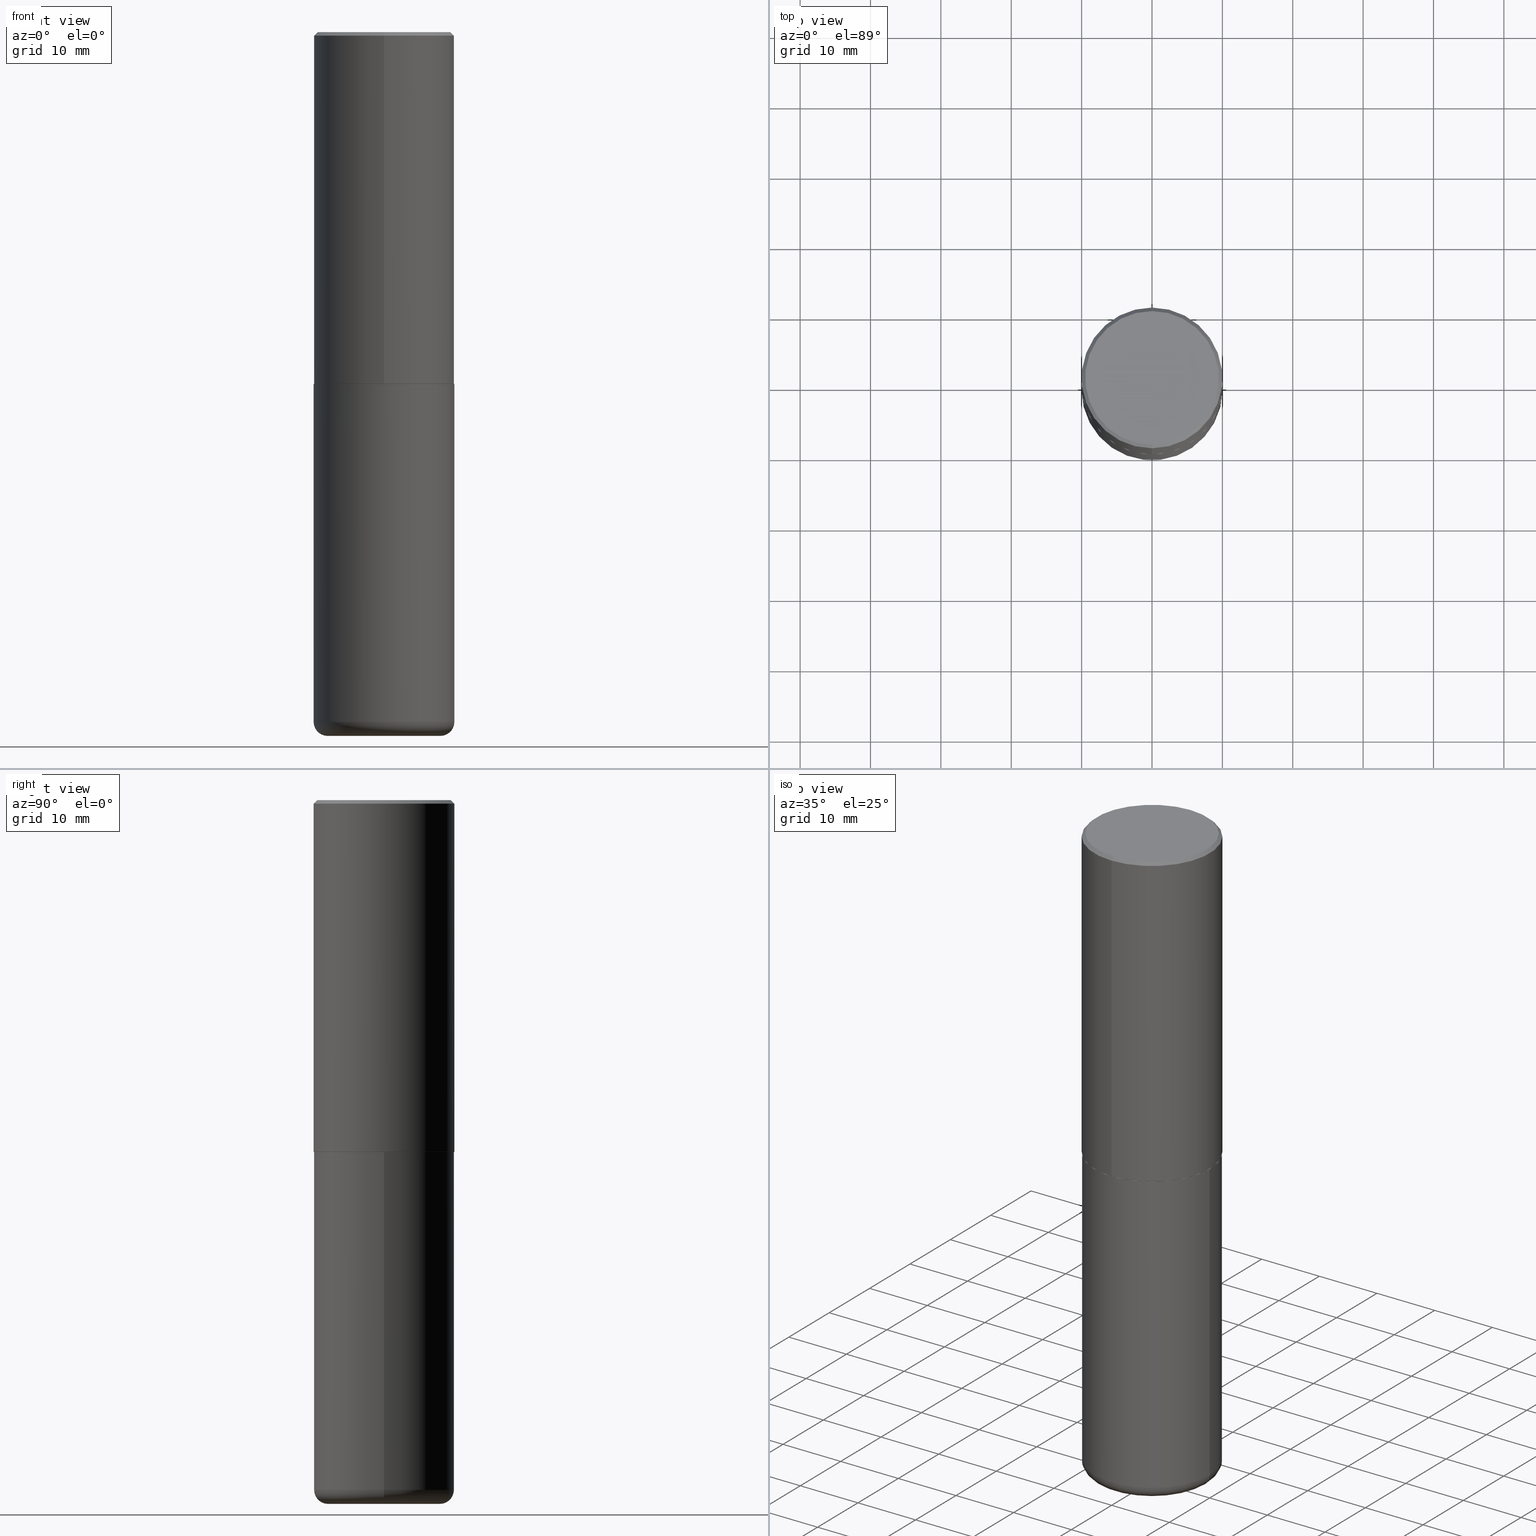
[diagram: canonical four-view strip — front | top / right | iso, engineering-drawing reading convention]
A machine part, canonical four-view strip (front | top / right | iso — engineering-drawing reading convention). The complete STEP part file that produces these views, byte-faithful:
ISO-10303-21;
HEADER;
FILE_DESCRIPTION (( 'STEP AP203' ),
    '1' );
FILE_NAME ('74516.STEP',
    '2024-03-06T15:22:37',
    ( '' ),
    ( '' ),
    'SwSTEP 2.0',
    'SolidWorks 2023',
    '' );
FILE_SCHEMA (( 'CONFIG_CONTROL_DESIGN' ));
ENDSEC;

DATA;
#1 = AXIS2_PLACEMENT_3D ( 'NONE', #408, #345, #49 ) ;
#2 = CARTESIAN_POINT ( 'NONE',  ( 2.749192406205083217E-15, 0.3936999999999999389, -0.02000000000000146105 ) ) ;
#3 = ORIENTED_EDGE ( 'NONE', *, *, #142, .F. ) ;
#4 = EDGE_LOOP ( 'NONE', ( #48, #158, #391, #302 ) ) ;
#5 = PERSON_AND_ORGANIZATION ( #255, #61 ) ;
#6 = VERTEX_POINT ( 'NONE', #68 ) ;
#7 = ADVANCED_BREP_SHAPE_REPRESENTATION ( '74516', ( #343, #53, #19 ), #394 ) ;
#8 = ORIENTED_EDGE ( 'NONE', *, *, #86, .F. ) ;
#9 = DIRECTION ( 'NONE',  ( -2.445468806185136597E-29, 3.491481338843145583E-15, 1.000000000000000000 ) ) ;
#10 = AXIS2_PLACEMENT_3D ( 'NONE', #106, #201, #334 ) ;
#11 = CIRCLE ( 'NONE', #88, 0.3926999999999999935 ) ;
#12 = PERSON_AND_ORGANIZATION ( #255, #61 ) ;
#13 = CARTESIAN_POINT ( 'NONE',  ( 4.818695749097161561E-29, -6.866120884157558352E-15, -1.968500000000000139 ) ) ;
#14 = AXIS2_PLACEMENT_3D ( 'NONE', #389, #25, #62 ) ;
#15 = DIRECTION ( 'NONE',  ( -4.851104656540946920E-15, -0.7071067811865474617, -0.7071067811865475727 ) ) ;
#16 = ADVANCED_FACE ( 'NONE', ( #136 ), #270, .F. ) ;
#17 = FACE_OUTER_BOUND ( 'NONE', #153, .T. ) ;
#18 = CARTESIAN_POINT ( 'NONE',  ( 0.3937000000000002164, -1.622037485586359329E-14, -3.858300000000000285 ) ) ;
#19 = AXIS2_PLACEMENT_3D ( 'NONE', #173, #115, #243 ) ;
#20 = DIRECTION ( 'NONE',  ( -2.445468806185136597E-29, 3.491481338843145583E-15, 1.000000000000000000 ) ) ;
#21 = ORIENTED_EDGE ( 'NONE', *, *, #205, .F. ) ;
#22 = SECURITY_CLASSIFICATION_LEVEL ( 'unclassified' ) ;
#23 = ORIENTED_EDGE ( 'NONE', *, *, #114, .T. ) ;
#24 = PERSON_AND_ORGANIZATION_ROLE ( 'classification_officer' ) ;
#25 = DIRECTION ( 'NONE',  ( -2.445468806185136597E-29, 3.491481338843145583E-15, 1.000000000000000000 ) ) ;
#26 = VECTOR ( 'NONE', #353, 39.37007874015748143 ) ;
#27 = EDGE_CURVE ( 'NONE', #220, #251, #39, .T. ) ;
#28 = DIRECTION ( 'NONE',  ( -2.445468806185136597E-29, 3.491481338843145583E-15, 1.000000000000000000 ) ) ;
#29 = CYLINDRICAL_SURFACE ( 'NONE', #342, 0.3937000000000001609 ) ;
#30 = ORIENTED_EDGE ( 'NONE', *, *, #339, .T. ) ;
#31 = LINE ( 'NONE', #228, #26 ) ;
#32 = ORIENTED_EDGE ( 'NONE', *, *, #245, .F. ) ;
#33 = AXIS2_PLACEMENT_3D ( 'NONE', #204, #400, #42 ) ;
#34 = LOCAL_TIME ( 10, 22, 37.00000000000000000, #360 ) ;
#35 = PERSON_AND_ORGANIZATION_ROLE ( 'creator' ) ;
#36 = ORIENTED_EDGE ( 'NONE', *, *, #86, .T. ) ;
#37 = ORIENTED_EDGE ( 'NONE', *, *, #134, .T. ) ;
#38 = ORIENTED_EDGE ( 'NONE', *, *, #142, .T. ) ;
#39 = LINE ( 'NONE', #130, #247 ) ;
#40 = CARTESIAN_POINT ( 'NONE',  ( 4.816247846760815671E-29, -6.862632887772413316E-15, -1.967500000000000027 ) ) ;
#41 = TOROIDAL_SURFACE ( 'NONE', #211, 0.3150000000000000577, 0.07870000000000024198 ) ;
#42 = DIRECTION ( 'NONE',  ( -1.000000000000000000, 6.982962677686265922E-15, -4.876176775795935793E-29 ) ) ;
#43 = PLANE ( 'NONE',  #381 ) ;
#44 = VECTOR ( 'NONE', #139, 39.37007874015748143 ) ;
#45 = CARTESIAN_POINT ( 'NONE',  ( -2.700978061722651252E-15, -0.3937000000000001054, -0.01999999999999870978 ) ) ;
#46 = CARTESIAN_POINT ( 'NONE',  ( 4.813905344975441835E-29, -6.872981015512731707E-15, -1.968500000000000139 ) ) ;
#47 = DIRECTION ( 'NONE',  ( -6.982962677686265922E-15, -1.000000000000000000, 3.487996385144809360E-15 ) ) ;
#48 = ORIENTED_EDGE ( 'NONE', *, *, #221, .F. ) ;
#49 = DIRECTION ( 'NONE',  ( 1.000000000000000000, -6.982962677686273810E-15, 0.000000000000000000 ) ) ;
#50 = CC_DESIGN_PERSON_AND_ORGANIZATION_ASSIGNMENT ( #54, #317, ( #190 ) ) ;
#51 = ORIENTED_EDGE ( 'NONE', *, *, #210, .T. ) ;
#52 = CIRCLE ( 'NONE', #172, 0.3937000000000002720 ) ;
#53 = MANIFOLD_SOLID_BREP ( 'Body-Move/Copy2[2]', #137 ) ;
#54 = PERSON_AND_ORGANIZATION ( #255, #61 ) ;
#55 = DIRECTION ( 'NONE',  ( -6.982962677686265922E-15, -1.000000000000000000, 3.469453890861393601E-15 ) ) ;
#56 = VERTEX_POINT ( 'NONE', #418 ) ;
#57 = CARTESIAN_POINT ( 'NONE',  ( 4.895804672692082949E-31, -6.975992770289649092E-17, -0.02000000000000008715 ) ) ;
#58 = EDGE_CURVE ( 'NONE', #71, #194, #117, .T. ) ;
#59 = CARTESIAN_POINT ( 'NONE',  ( -0.3150000000000000577, -1.123297283201419171E-14, -3.858300000000000285 ) ) ;
#60 = AXIS2_PLACEMENT_3D ( 'NONE', #310, #377, #213 ) ;
#61 = ORGANIZATION ( 'UNSPECIFIED', 'UNSPECIFIED', '' ) ;
#62 = DIRECTION ( 'NONE',  ( 1.000000000000000000, -6.982962677686265133E-15, 0.000000000000000000 ) ) ;
#63 = ORIENTED_EDGE ( 'NONE', *, *, #339, .F. ) ;
#64 = PERSON_AND_ORGANIZATION ( #255, #61 ) ;
#65 = LENGTH_MEASURE_WITH_UNIT ( LENGTH_MEASURE( 0.02539999999999999897 ), #393 );
#66 = VERTEX_POINT ( 'NONE', #387 ) ;
#67 = AXIS2_PLACEMENT_3D ( 'NONE', #275, #170, #207 ) ;
#68 = CARTESIAN_POINT ( 'NONE',  ( -0.3150000000000000577, -1.109076405617607056E-14, -3.937000000000000721 ) ) ;
#69 = DATE_TIME_ROLE ( 'creation_date' ) ;
#70 = APPLICATION_CONTEXT ( 'configuration controlled 3d designs of mechanical parts and assemblies' ) ;
#71 = VERTEX_POINT ( 'NONE', #229 ) ;
#72 = EDGE_CURVE ( 'NONE', #66, #220, #77, .T. ) ;
#73 = DIRECTION ( 'NONE',  ( -2.447902336346030930E-29, 3.487996385144809755E-15, 1.000000000000000000 ) ) ;
#74 = ORIENTED_EDGE ( 'NONE', *, *, #135, .T. ) ;
#75 = DIRECTION ( 'NONE',  ( 1.000000000000000000, -6.982962677686266711E-15, 4.876176775795935793E-29 ) ) ;
#76 = EDGE_CURVE ( 'NONE', #6, #324, #392, .T. ) ;
#77 = CIRCLE ( 'NONE', #347, 0.3737000000000003097 ) ;
#78 = CARTESIAN_POINT ( 'NONE',  ( 0.000000000000000000, 0.000000000000000000, 0.000000000000000000 ) ) ;
#79 = FACE_OUTER_BOUND ( 'NONE', #233, .T. ) ;
#80 = DIRECTION ( 'NONE',  ( -2.445468806185136597E-29, 3.491481338843145583E-15, 1.000000000000000000 ) ) ;
#81 = TOROIDAL_SURFACE ( 'NONE', #330, 0.3150000000000000577, 0.07870000000000024198 ) ;
#82 = ORIENTED_EDGE ( 'NONE', *, *, #210, .F. ) ;
#83 = DATE_AND_TIME ( #154, #119 ) ;
#84 = DIRECTION ( 'NONE',  ( -6.982962677686265922E-15, -1.000000000000000000, 3.487996385144809360E-15 ) ) ;
#85 = DIRECTION ( 'NONE',  ( -2.447902336346030930E-29, 3.487996385144809755E-15, 1.000000000000000000 ) ) ;
#86 = EDGE_CURVE ( 'NONE', #324, #238, #405, .T. ) ;
#87 = CIRCLE ( 'NONE', #60, 0.3150000000000000577 ) ;
#88 = AXIS2_PLACEMENT_3D ( 'NONE', #13, #278, #344 ) ;
#89 = CARTESIAN_POINT ( 'NONE',  ( 2.790301323329961110E-15, 0.3926999999999931101, -1.968500000000001471 ) ) ;
#90 = EDGE_LOOP ( 'NONE', ( #358, #296 ) ) ;
#91 = DIRECTION ( 'NONE',  ( -1.000000000000000000, 7.105427357600995548E-15, 0.000000000000000000 ) ) ;
#92 = ORIENTED_EDGE ( 'NONE', *, *, #98, .T. ) ;
#93 = PRODUCT ( '74516', '74516', '', ( #246 ) ) ;
#94 = CIRCLE ( 'NONE', #376, 0.3937000000000000499 ) ;
#95 = VECTOR ( 'NONE', #249, 39.37007874015748143 ) ;
#96 = APPROVAL_PERSON_ORGANIZATION ( #287, #239, #185 ) ;
#97 = ORIENTED_EDGE ( 'NONE', *, *, #227, .T. ) ;
#98 = EDGE_CURVE ( 'NONE', #157, #251, #94, .T. ) ;
#99 = APPROVAL_STATUS ( 'not_yet_approved' ) ;
#100 = CARTESIAN_POINT ( 'NONE',  ( 4.895804672692082949E-31, -6.975992770289649092E-17, -0.02000000000000008715 ) ) ;
#101 = CARTESIAN_POINT ( 'NONE',  ( 4.895804672692082949E-31, -6.975992770289649092E-17, -0.02000000000000008715 ) ) ;
#102 = APPROVAL_ROLE ( '' ) ;
#103 = CIRCLE ( 'NONE', #1, 0.07870000000000024198 ) ;
#104 = CARTESIAN_POINT ( 'NONE',  ( 9.435352294904112142E-29, -1.347118244965850850E-14, -3.858300000000000285 ) ) ;
#105 = LOCAL_TIME ( 10, 22, 37.00000000000000000, #151 ) ;
#106 = CARTESIAN_POINT ( 'NONE',  ( 4.818695749097161561E-29, -6.866120884157558352E-15, -1.968500000000000139 ) ) ;
#107 = CC_DESIGN_DATE_AND_TIME_ASSIGNMENT ( #253, #294, ( #144 ) ) ;
#108 = ORIENTED_EDGE ( 'NONE', *, *, #244, .T. ) ;
#109 = DIRECTION ( 'NONE',  ( -6.982962677686265133E-15, -1.000000000000000000, 3.491137977679279424E-15 ) ) ;
#110 = LINE ( 'NONE', #325, #415 ) ;
#111 = AXIS2_PLACEMENT_3D ( 'NONE', #410, #85, #217 ) ;
#112 = APPROVAL_PERSON_ORGANIZATION ( #5, #375, #102 ) ;
#113 = FACE_OUTER_BOUND ( 'NONE', #168, .T. ) ;
#114 = EDGE_CURVE ( 'NONE', #56, #71, #182, .T. ) ;
#115 = DIRECTION ( 'NONE',  ( 0.000000000000000000, 0.000000000000000000, 1.000000000000000000 ) ) ;
#116 = CARTESIAN_POINT ( 'NONE',  ( 2.793854037008762403E-15, 0.3926999999999931101, -1.968500000000001471 ) ) ;
#117 = CIRCLE ( 'NONE', #352, 0.3937000000000002720 ) ;
#118 = AXIS2_PLACEMENT_3D ( 'NONE', #395, #225, #262 ) ;
#119 = LOCAL_TIME ( 10, 22, 37.00000000000000000, #215 ) ;
#120 = ORIENTED_EDGE ( 'NONE', *, *, #114, .F. ) ;
#121 = PRODUCT_RELATED_PRODUCT_CATEGORY ( 'detail', '', ( #93 ) ) ;
#122 = CIRCLE ( 'NONE', #281, 0.3926999999999999935 ) ;
#123 = ORIENTED_EDGE ( 'NONE', *, *, #205, .T. ) ;
#124 = PERSON_AND_ORGANIZATION ( #255, #61 ) ;
#125 = EDGE_LOOP ( 'NONE', ( #37, #51 ) ) ;
#126 = ADVANCED_FACE ( 'NONE', ( #147 ), #41, .T. ) ;
#127 = DIRECTION ( 'NONE',  ( 2.447902336346030930E-29, -3.487996385144809755E-15, -1.000000000000000000 ) ) ;
#128 = FACE_OUTER_BOUND ( 'NONE', #300, .T. ) ;
#129 = CC_DESIGN_PERSON_AND_ORGANIZATION_ASSIGNMENT ( #12, #305, ( #93 ) ) ;
#130 = CARTESIAN_POINT ( 'NONE',  ( 2.749192406205083217E-15, 0.3936999999999999389, -0.02000000000000146105 ) ) ;
#131 = CARTESIAN_POINT ( 'NONE',  ( 4.895804672692082949E-31, -6.975992770289649092E-17, -0.02000000000000008715 ) ) ;
#132 = APPROVAL_STATUS ( 'not_yet_approved' ) ;
#133 = EDGE_LOOP ( 'NONE', ( #3, #36, #108, #82 ) ) ;
#134 = EDGE_CURVE ( 'NONE', #230, #197, #248, .T. ) ;
#135 = EDGE_CURVE ( 'NONE', #71, #157, #31, .T. ) ;
#136 = FACE_OUTER_BOUND ( 'NONE', #365, .T. ) ;
#137 = CLOSED_SHELL ( 'NONE', ( #276, #189, #417, #390, #218, #176, #16, #403 ) ) ;
#138 = AXIS2_PLACEMENT_3D ( 'NONE', #78, #20, #284 ) ;
#139 = DIRECTION ( 'NONE',  ( 5.024295867788576727E-15, 0.7071067811866224018, 0.7071067811864726327 ) ) ;
#140 = CARTESIAN_POINT ( 'NONE',  ( 2.797406750687515181E-15, 0.3937000000000001609, -1.373224176831512065E-15 ) ) ;
#141 = CIRCLE ( 'NONE', #304, 0.3150000000000000577 ) ;
#142 = EDGE_CURVE ( 'NONE', #324, #197, #193, .T. ) ;
#143 = ADVANCED_FACE ( 'NONE', ( #297 ), #366, .T. ) ;
#144 = SECURITY_CLASSIFICATION ( '', '', #22 ) ;
#145 = EDGE_LOOP ( 'NONE', ( #272, #409, #92, #192 ) ) ;
#146 = PERSON_AND_ORGANIZATION ( #255, #61 ) ;
#147 = FACE_OUTER_BOUND ( 'NONE', #293, .T. ) ;
#148 = UNCERTAINTY_MEASURE_WITH_UNIT (LENGTH_MEASURE( 1.000000000000000082E-05 ), #382, 'distance_accuracy_value', 'NONE');
#149 = AXIS2_PLACEMENT_3D ( 'NONE', #236, #301, #75 ) ;
#150 = LOCAL_TIME ( 10, 22, 37.00000000000000000, #268 ) ;
#151 = COORDINATED_UNIVERSAL_TIME_OFFSET ( 5, 0, .BEHIND. ) ;
#152 = CARTESIAN_POINT ( 'NONE',  ( 9.435352294904112142E-29, -1.347118244965850850E-14, -3.858300000000000285 ) ) ;
#153 = EDGE_LOOP ( 'NONE', ( #164, #361 ) ) ;
#154 = CALENDAR_DATE ( 2024, 6, 3 ) ;
#155 = FACE_OUTER_BOUND ( 'NONE', #145, .T. ) ;
#156 = CC_DESIGN_PERSON_AND_ORGANIZATION_ASSIGNMENT ( #146, #24, ( #144 ) ) ;
#157 = VERTEX_POINT ( 'NONE', #203 ) ;
#158 = ORIENTED_EDGE ( 'NONE', *, *, #364, .F. ) ;
#159 = CARTESIAN_POINT ( 'NONE',  ( 4.818695749097161561E-29, -6.866120884157558352E-15, -1.968500000000000139 ) ) ;
#160 = APPROVAL_DATE_TIME ( #235, #375 ) ;
#161 = DIRECTION ( 'NONE',  ( -2.445468806185136877E-29, 3.491481338843145188E-15, 1.000000000000000000 ) ) ;
#162 = CONICAL_SURFACE ( 'NONE', #237, 0.3937000000000000499, 0.7853981633974447263 ) ;
#163 = EDGE_CURVE ( 'NONE', #194, #71, #52, .T. ) ;
#164 = ORIENTED_EDGE ( 'NONE', *, *, #227, .F. ) ;
#165 = CC_DESIGN_APPROVAL ( #333, ( #199 ) ) ;
#166 = ORIENTED_EDGE ( 'NONE', *, *, #374, .F. ) ;
#167 = CALENDAR_DATE ( 2024, 6, 3 ) ;
#168 = EDGE_LOOP ( 'NONE', ( #259, #411, #399, #8 ) ) ;
#169 = ORIENTED_EDGE ( 'NONE', *, *, #98, .F. ) ;
#170 = DIRECTION ( 'NONE',  ( -2.447902336346030930E-29, 3.487996385144809755E-15, 1.000000000000000000 ) ) ;
#171 = AXIS2_PLACEMENT_3D ( 'NONE', #59, #357, #91 ) ;
#172 = AXIS2_PLACEMENT_3D ( 'NONE', #40, #303, #336 ) ;
#173 = CARTESIAN_POINT ( 'NONE',  ( 0.000000000000000000, 0.000000000000000000, 0.000000000000000000 ) ) ;
#174 = LINE ( 'NONE', #140, #95 ) ;
#175 = DIRECTION ( 'NONE',  ( -2.447902336346030930E-29, 3.487996385144809755E-15, 1.000000000000000000 ) ) ;
#176 = ADVANCED_FACE ( 'NONE', ( #79 ), #178, .T. ) ;
#177 = ORIENTED_EDGE ( 'NONE', *, *, #373, .F. ) ;
#178 = CONICAL_SURFACE ( 'NONE', #67, 0.3926999999999999935, 0.7853981633975507526 ) ;
#179 = VERTEX_POINT ( 'NONE', #401 ) ;
#180 = CARTESIAN_POINT ( 'NONE',  ( 2.797406750687540030E-15, 0.3936999999999934441, -1.967500000000001359 ) ) ;
#181 = CC_DESIGN_DATE_AND_TIME_ASSIGNMENT ( #298, #69, ( #199 ) ) ;
#182 = LINE ( 'NONE', #323, #402 ) ;
#183 = PERSON_AND_ORGANIZATION_ROLE ( 'design_supplier' ) ;
#184 = DIRECTION ( 'NONE',  ( -6.982962677686265133E-15, -1.000000000000000000, 3.491137977679279424E-15 ) ) ;
#185 = APPROVAL_ROLE ( '' ) ;
#186 = PLANE ( 'NONE',  #118 ) ;
#187 = ADVANCED_FACE ( 'NONE', ( #113 ), #81, .T. ) ;
#188 = AXIS2_PLACEMENT_3D ( 'NONE', #104, #9, #242 ) ;
#189 = ADVANCED_FACE ( 'NONE', ( #128 ), #29, .T. ) ;
#190 = PRODUCT_DEFINITION_FORMATION_WITH_SPECIFIED_SOURCE ( 'ANY', '', #93, .NOT_KNOWN. ) ;
#191 = DIRECTION ( 'NONE',  ( 1.000000000000000000, -6.982962677686268288E-15, 4.883557194083113462E-29 ) ) ;
#192 = ORIENTED_EDGE ( 'NONE', *, *, #27, .F. ) ;
#193 = LINE ( 'NONE', #288, #271 ) ;
#194 = VERTEX_POINT ( 'NONE', #180 ) ;
#195 = CALENDAR_DATE ( 2024, 6, 3 ) ;
#196 = DIRECTION ( 'NONE',  ( 1.000000000000000000, -6.982962677686266711E-15, 0.000000000000000000 ) ) ;
#197 = VERTEX_POINT ( 'NONE', #315 ) ;
#198 = APPROVAL_DATE_TIME ( #396, #333 ) ;
#199 = PRODUCT_DEFINITION ( 'UNKNOWN', '', #190, #256 ) ;
#200 = CONICAL_SURFACE ( 'NONE', #260, 0.3937000000000000499, 0.7853981633974447263 ) ;
#201 = DIRECTION ( 'NONE',  ( -2.447902336346030930E-29, 3.487996385144809360E-15, 1.000000000000000000 ) ) ;
#202 = EDGE_CURVE ( 'NONE', #283, #194, #286, .T. ) ;
#203 = CARTESIAN_POINT ( 'NONE',  ( -2.700978061722651252E-15, -0.3937000000000001054, -0.01999999999999870978 ) ) ;
#204 = CARTESIAN_POINT ( 'NONE',  ( 4.813905344975441835E-29, -6.872981015512731707E-15, -1.968500000000000139 ) ) ;
#205 = EDGE_CURVE ( 'NONE', #283, #56, #11, .T. ) ;
#206 = FACE_OUTER_BOUND ( 'NONE', #125, .T. ) ;
#207 = DIRECTION ( 'NONE',  ( -6.982962677686265133E-15, -1.000000000000000000, 3.478288761986584267E-15 ) ) ;
#208 = CARTESIAN_POINT ( 'NONE',  ( 0.000000000000000000, 0.000000000000000000, 0.000000000000000000 ) ) ;
#209 = CARTESIAN_POINT ( 'NONE',  ( 2.679362779428221496E-15, 0.3737000000000003097, -1.526729225810905823E-15 ) ) ;
#210 = EDGE_CURVE ( 'NONE', #197, #230, #307, .T. ) ;
#211 = AXIS2_PLACEMENT_3D ( 'NONE', #414, #28, #191 ) ;
#212 = DIRECTION ( 'NONE',  ( 2.438088387897960049E-29, -3.491481338843145188E-15, -1.000000000000000000 ) ) ;
#213 = DIRECTION ( 'NONE',  ( 1.000000000000000000, -6.982962677686267499E-15, 0.000000000000000000 ) ) ;
#214 = SHAPE_DEFINITION_REPRESENTATION ( #299, #7 ) ;
#215 = COORDINATED_UNIVERSAL_TIME_OFFSET ( 5, 0, .BEHIND. ) ;
#216 = FACE_OUTER_BOUND ( 'NONE', #90, .T. ) ;
#217 = DIRECTION ( 'NONE',  ( -6.982962677686265922E-15, -1.000000000000000000, 3.487996385144809755E-15 ) ) ;
#218 = ADVANCED_FACE ( 'NONE', ( #341 ), #279, .T. ) ;
#219 = CC_DESIGN_APPROVAL ( #239, ( #144 ) ) ;
#220 = VERTEX_POINT ( 'NONE', #209 ) ;
#221 = EDGE_CURVE ( 'NONE', #66, #157, #404, .T. ) ;
#222 = CARTESIAN_POINT ( 'NONE',  ( 5.465308580448185111E-45, -7.787474315972660237E-31, -2.232649766822894597E-16 ) ) ;
#223 = CARTESIAN_POINT ( 'NONE',  ( 0.000000000000000000, 0.000000000000000000, 0.000000000000000000 ) ) ;
#224 = DIRECTION ( 'NONE',  ( 6.982962677686265133E-15, 1.000000000000000000, -3.491137977679279424E-15 ) ) ;
#225 = DIRECTION ( 'NONE',  ( 2.447902336346030930E-29, -3.487996385144809360E-15, -1.000000000000000000 ) ) ;
#226 = DIRECTION ( 'NONE',  ( -2.447902336346030930E-29, 3.487996385144809755E-15, 1.000000000000000000 ) ) ;
#227 = EDGE_CURVE ( 'NONE', #179, #6, #87, .T. ) ;
#228 = CARTESIAN_POINT ( 'NONE',  ( -2.749192406205084005E-15, -0.3937000000000001609, 1.373224176831512065E-15 ) ) ;
#229 = CARTESIAN_POINT ( 'NONE',  ( -2.749192406205036674E-15, -0.3937000000000070998, -1.967499999999998694 ) ) ;
#230 = VERTEX_POINT ( 'NONE', #312 ) ;
#231 = DIRECTION ( 'NONE',  ( -2.447902336346030930E-29, 3.487996385144809755E-15, 1.000000000000000000 ) ) ;
#232 = APPROVAL_ROLE ( '' ) ;
#233 = EDGE_LOOP ( 'NONE', ( #267, #123, #23, #356 ) ) ;
#234 = CLOSED_SHELL ( 'NONE', ( #349, #126, #368, #143, #187, #308 ) ) ;
#235 = DATE_AND_TIME ( #195, #150 ) ;
#236 = CARTESIAN_POINT ( 'NONE',  ( 0.000000000000000000, 0.000000000000000000, 0.000000000000000000 ) ) ;
#237 = AXIS2_PLACEMENT_3D ( 'NONE', #100, #127, #359 ) ;
#238 = VERTEX_POINT ( 'NONE', #18 ) ;
#239 = APPROVAL ( #380, 'UNSPECIFIED' ) ;
#240 = DIRECTION ( 'NONE',  ( 1.000000000000000000, -6.982962677686267499E-15, 0.000000000000000000 ) ) ;
#241 = CIRCLE ( 'NONE', #188, 0.3937000000000001054 ) ;
#242 = DIRECTION ( 'NONE',  ( 1.000000000000000000, -6.982962677686266711E-15, 0.000000000000000000 ) ) ;
#243 = DIRECTION ( 'NONE',  ( 1.000000000000000000, 0.000000000000000000, 0.000000000000000000 ) ) ;
#244 = EDGE_CURVE ( 'NONE', #238, #230, #110, .T. ) ;
#245 = EDGE_CURVE ( 'NONE', #251, #157, #322, .T. ) ;
#246 = MECHANICAL_CONTEXT ( 'NONE', #70, 'mechanical' ) ;
#247 = VECTOR ( 'NONE', #263, 39.37007874015748143 ) ;
#248 = CIRCLE ( 'NONE', #14, 0.3937000000000000499 ) ;
#249 = DIRECTION ( 'NONE',  ( -2.447902336346030930E-29, 3.487996385144809360E-15, 1.000000000000000000 ) ) ;
#250 = APPROVAL_PERSON_ORGANIZATION ( #319, #333, #232 ) ;
#251 = VERTEX_POINT ( 'NONE', #2 ) ;
#252 = DIRECTION ( 'NONE',  ( -2.445468806185136597E-29, 3.491481338843145583E-15, 1.000000000000000000 ) ) ;
#253 = DATE_AND_TIME ( #413, #105 ) ;
#254 = DIRECTION ( 'NONE',  ( 1.000000000000000000, -6.982962677686268288E-15, 4.883557194083113462E-29 ) ) ;
#255 = PERSON ( 'UNSPECIFIED', 'UNSPECIFIED', 'UNSPECIFIED', ('UNSPECIFIED'), ('UNSPECIFIED'), ('UNSPECIFIED') ) ;
#256 = DESIGN_CONTEXT ( 'detailed design', #335, 'design' ) ;
#257 = CC_DESIGN_PERSON_AND_ORGANIZATION_ASSIGNMENT ( #64, #35, ( #199 ) ) ;
#258 = EDGE_LOOP ( 'NONE', ( #316, #38, #285, #386 ) ) ;
#259 = ORIENTED_EDGE ( 'NONE', *, *, #76, .F. ) ;
#260 = AXIS2_PLACEMENT_3D ( 'NONE', #101, #321, #224 ) ;
#261 = DIRECTION ( 'NONE',  ( -2.447902336346030930E-29, 3.487996385144809755E-15, 1.000000000000000000 ) ) ;
#262 = DIRECTION ( 'NONE',  ( 6.982962677686265922E-15, 1.000000000000000000, -3.487996385144809360E-15 ) ) ;
#263 = DIRECTION ( 'NONE',  ( 4.937700262164529898E-15, 0.7071067811865425767, -0.7071067811865524577 ) ) ;
#264 = CC_DESIGN_PERSON_AND_ORGANIZATION_ASSIGNMENT ( #124, #183, ( #190 ) ) ;
#265 = DIRECTION ( 'NONE',  ( -6.982962677686265133E-15, -1.000000000000000000, 3.478288761986584267E-15 ) ) ;
#266 = DIRECTION ( 'NONE',  ( -2.447902336346030930E-29, 3.487996385144809755E-15, 1.000000000000000000 ) ) ;
#267 = ORIENTED_EDGE ( 'NONE', *, *, #202, .F. ) ;
#268 = COORDINATED_UNIVERSAL_TIME_OFFSET ( 5, 0, .BEHIND. ) ;
#269 = PLANE ( 'NONE',  #33 ) ;
#270 = PLANE ( 'NONE',  #10 ) ;
#271 = VECTOR ( 'NONE', #161, 39.37007874015748143 ) ;
#272 = ORIENTED_EDGE ( 'NONE', *, *, #72, .F. ) ;
#273 =( NAMED_UNIT ( * ) SI_UNIT ( $, .STERADIAN. ) SOLID_ANGLE_UNIT ( ) );
#274 = FACE_OUTER_BOUND ( 'NONE', #258, .T. ) ;
#275 = CARTESIAN_POINT ( 'NONE',  ( 4.818695749097161561E-29, -6.866120884157558352E-15, -1.968500000000000139 ) ) ;
#276 = ADVANCED_FACE ( 'NONE', ( #355 ), #329, .T. ) ;
#277 = DIRECTION ( 'NONE',  ( 1.000000000000000000, -6.982962677686265133E-15, 0.000000000000000000 ) ) ;
#278 = DIRECTION ( 'NONE',  ( -2.447902336346030930E-29, 3.487996385144809755E-15, 1.000000000000000000 ) ) ;
#279 = CYLINDRICAL_SURFACE ( 'NONE', #362, 0.3937000000000001609 ) ;
#280 = AXIS2_PLACEMENT_3D ( 'NONE', #152, #397, #196 ) ;
#281 = AXIS2_PLACEMENT_3D ( 'NONE', #328, #367, #265 ) ;
#282 = DIRECTION ( 'NONE',  ( -1.000000000000000000, 6.982962677686265922E-15, -4.876176775795935793E-29 ) ) ;
#283 = VERTEX_POINT ( 'NONE', #116 ) ;
#284 = DIRECTION ( 'NONE',  ( 1.000000000000000000, -6.982962677686266711E-15, 4.876176775795935793E-29 ) ) ;
#285 = ORIENTED_EDGE ( 'NONE', *, *, #134, .F. ) ;
#286 = LINE ( 'NONE', #89, #44 ) ;
#287 = PERSON_AND_ORGANIZATION ( #255, #61 ) ;
#288 = CARTESIAN_POINT ( 'NONE',  ( -0.3937000000000001054, 2.797406750687515181E-15, -1.936584745033357016E-29 ) ) ;
#289 = CARTESIAN_POINT ( 'NONE',  ( 9.435352294904112142E-29, -1.347118244965850850E-14, -3.858300000000000285 ) ) ;
#290 = EDGE_CURVE ( 'NONE', #6, #179, #141, .T. ) ;
#291 =( NAMED_UNIT ( * ) PLANE_ANGLE_UNIT ( ) SI_UNIT ( $, .RADIAN. ) );
#292 = AXIS2_PLACEMENT_3D ( 'NONE', #131, #73, #109 ) ;
#293 = EDGE_LOOP ( 'NONE', ( #97, #383, #177, #412 ) ) ;
#294 = DATE_TIME_ROLE ( 'classification_date' ) ;
#295 = APPROVAL_DATE_TIME ( #83, #239 ) ;
#296 = ORIENTED_EDGE ( 'NONE', *, *, #72, .T. ) ;
#297 = FACE_OUTER_BOUND ( 'NONE', #133, .T. ) ;
#298 = DATE_AND_TIME ( #167, #371 ) ;
#299 = PRODUCT_DEFINITION_SHAPE ( 'NONE', 'NONE',  #199 ) ;
#300 = EDGE_LOOP ( 'NONE', ( #406, #30, #169, #416 ) ) ;
#301 = DIRECTION ( 'NONE',  ( -2.445468806185136597E-29, 3.491481338843145583E-15, 1.000000000000000000 ) ) ;
#302 = ORIENTED_EDGE ( 'NONE', *, *, #245, .T. ) ;
#303 = DIRECTION ( 'NONE',  ( -2.447902336346030930E-29, 3.487996385144809755E-15, 1.000000000000000000 ) ) ;
#304 = AXIS2_PLACEMENT_3D ( 'NONE', #338, #252, #240 ) ;
#305 = PERSON_AND_ORGANIZATION_ROLE ( 'design_owner' ) ;
#306 = CARTESIAN_POINT ( 'NONE',  ( 4.859318144497942927E-29, -2.057471476185479592E-14, -3.937000000000000277 ) ) ;
#307 = CIRCLE ( 'NONE', #348, 0.3937000000000000499 ) ;
#308 = ADVANCED_FACE ( 'NONE', ( #17 ), #43, .T. ) ;
#309 = CC_DESIGN_APPROVAL ( #375, ( #190 ) ) ;
#310 = CARTESIAN_POINT ( 'NONE',  ( 9.627810689950884790E-29, -1.374596203102546657E-14, -3.937000000000000721 ) ) ;
#311 = DIRECTION ( 'NONE',  ( -6.982962677686265133E-15, -1.000000000000000000, 3.478288761986584267E-15 ) ) ;
#312 = CARTESIAN_POINT ( 'NONE',  ( 0.3937000000000000499, -9.622173421717814924E-15, -1.968500000000000139 ) ) ;
#313 = AXIS2_PLACEMENT_3D ( 'NONE', #159, #266, #311 ) ;
#314 = CYLINDRICAL_SURFACE ( 'NONE', #138, 0.3937000000000001054 ) ;
#315 = CARTESIAN_POINT ( 'NONE',  ( -0.3937000000000000499, -7.374674981898105316E-15, -1.968500000000000139 ) ) ;
#316 = ORIENTED_EDGE ( 'NONE', *, *, #373, .T. ) ;
#317 = PERSON_AND_ORGANIZATION_ROLE ( 'creator' ) ;
#318 = EDGE_CURVE ( 'NONE', #179, #238, #103, .T. ) ;
#319 = PERSON_AND_ORGANIZATION ( #255, #61 ) ;
#320 = DIRECTION ( 'NONE',  ( -4.937700262165053702E-15, -0.7071067811866175168, 0.7071067811864775177 ) ) ;
#321 = DIRECTION ( 'NONE',  ( 2.447902336346030930E-29, -3.487996385144809755E-15, -1.000000000000000000 ) ) ;
#322 = CIRCLE ( 'NONE', #292, 0.3937000000000000499 ) ;
#323 = CARTESIAN_POINT ( 'NONE',  ( -2.742209443527348687E-15, -0.3927000000000069324, -1.968499999999998584 ) ) ;
#324 = VERTEX_POINT ( 'NONE', #369 ) ;
#325 = CARTESIAN_POINT ( 'NONE',  ( 0.3937000000000001054, -2.749192406205084005E-15, 1.919750796630860452E-29 ) ) ;
#326 = COORDINATED_UNIVERSAL_TIME_OFFSET ( 5, 0, .BEHIND. ) ;
#327 = ORIENTED_EDGE ( 'NONE', *, *, #202, .T. ) ;
#328 = CARTESIAN_POINT ( 'NONE',  ( 4.818695749097161561E-29, -6.866120884157558352E-15, -1.968500000000000139 ) ) ;
#329 = CONICAL_SURFACE ( 'NONE', #313, 0.3926999999999999935, 0.7853981633975507526 ) ;
#330 = AXIS2_PLACEMENT_3D ( 'NONE', #289, #385, #254 ) ;
#331 = DIRECTION ( 'NONE',  ( -2.445468806185136877E-29, 3.491481338843145188E-15, 1.000000000000000000 ) ) ;
#332 = EDGE_LOOP ( 'NONE', ( #350, #327, #379, #120 ) ) ;
#333 = APPROVAL ( #99, 'UNSPECIFIED' ) ;
#334 = DIRECTION ( 'NONE',  ( -6.982962677686265922E-15, -1.000000000000000000, 3.487996385144809360E-15 ) ) ;
#335 = APPLICATION_CONTEXT ( 'configuration controlled 3d designs of mechanical parts and assemblies' ) ;
#336 = DIRECTION ( 'NONE',  ( -6.982962677686265922E-15, -1.000000000000000000, 3.469453890861393601E-15 ) ) ;
#337 = CC_DESIGN_SECURITY_CLASSIFICATION ( #144, ( #190 ) ) ;
#338 = CARTESIAN_POINT ( 'NONE',  ( 9.627810689950884790E-29, -1.374596203102546657E-14, -3.937000000000000721 ) ) ;
#339 = EDGE_CURVE ( 'NONE', #194, #251, #174, .T. ) ;
#340 = EDGE_LOOP ( 'NONE', ( #63, #346, #74, #32 ) ) ;
#341 = FACE_OUTER_BOUND ( 'NONE', #340, .T. ) ;
#342 = AXIS2_PLACEMENT_3D ( 'NONE', #223, #261, #84 ) ;
#343 = MANIFOLD_SOLID_BREP ( 'Body-Move/Copy2[1]', #234 ) ;
#344 = DIRECTION ( 'NONE',  ( -6.982962677686265133E-15, -1.000000000000000000, 3.478288761986584267E-15 ) ) ;
#345 = DIRECTION ( 'NONE',  ( -6.982962677686266711E-15, -1.000000000000000000, 3.491481338843145583E-15 ) ) ;
#346 = ORIENTED_EDGE ( 'NONE', *, *, #163, .T. ) ;
#347 = AXIS2_PLACEMENT_3D ( 'NONE', #222, #384, #351 ) ;
#348 = AXIS2_PLACEMENT_3D ( 'NONE', #46, #80, #277 ) ;
#349 = ADVANCED_FACE ( 'NONE', ( #274 ), #314, .T. ) ;
#350 = ORIENTED_EDGE ( 'NONE', *, *, #374, .T. ) ;
#351 = DIRECTION ( 'NONE',  ( -6.982962677686265922E-15, -1.000000000000000000, 3.487996385144809755E-15 ) ) ;
#352 = AXIS2_PLACEMENT_3D ( 'NONE', #388, #231, #55 ) ;
#353 = DIRECTION ( 'NONE',  ( -2.447902336346030930E-29, 3.487996385144809360E-15, 1.000000000000000000 ) ) ;
#354 = DIMENSIONAL_EXPONENTS ( 1.000000000000000000, 0.000000000000000000, 0.000000000000000000, 0.000000000000000000, 0.000000000000000000, 0.000000000000000000, 0.000000000000000000 ) ;
#355 = FACE_OUTER_BOUND ( 'NONE', #332, .T. ) ;
#356 = ORIENTED_EDGE ( 'NONE', *, *, #163, .F. ) ;
#357 = DIRECTION ( 'NONE',  ( 7.105427357601001859E-15, 1.000000000000000000, -3.491481338843145583E-15 ) ) ;
#358 = ORIENTED_EDGE ( 'NONE', *, *, #364, .T. ) ;
#359 = DIRECTION ( 'NONE',  ( 6.982962677686265133E-15, 1.000000000000000000, -3.491137977679279424E-15 ) ) ;
#360 = COORDINATED_UNIVERSAL_TIME_OFFSET ( 5, 0, .BEHIND. ) ;
#361 = ORIENTED_EDGE ( 'NONE', *, *, #290, .F. ) ;
#362 = AXIS2_PLACEMENT_3D ( 'NONE', #208, #175, #47 ) ;
#363 = CALENDAR_DATE ( 2024, 6, 3 ) ;
#364 = EDGE_CURVE ( 'NONE', #220, #66, #370, .T. ) ;
#365 = EDGE_LOOP ( 'NONE', ( #166, #21 ) ) ;
#366 = CYLINDRICAL_SURFACE ( 'NONE', #149, 0.3937000000000001054 ) ;
#367 = DIRECTION ( 'NONE',  ( -2.447902336346030930E-29, 3.487996385144809755E-15, 1.000000000000000000 ) ) ;
#368 = ADVANCED_FACE ( 'NONE', ( #206 ), #269, .F. ) ;
#369 = CARTESIAN_POINT ( 'NONE',  ( -0.3937000000000002164, -1.067377569897099292E-14, -3.858300000000000285 ) ) ;
#370 = CIRCLE ( 'NONE', #111, 0.3737000000000003097 ) ;
#371 = LOCAL_TIME ( 10, 22, 37.00000000000000000, #326 ) ;
#372 = APPLICATION_PROTOCOL_DEFINITION ( 'international standard', 'config_control_design', 1994, #70 ) ;
#373 = EDGE_CURVE ( 'NONE', #238, #324, #241, .T. ) ;
#374 = EDGE_CURVE ( 'NONE', #56, #283, #122, .T. ) ;
#375 = APPROVAL ( #132, 'UNSPECIFIED' ) ;
#376 = AXIS2_PLACEMENT_3D ( 'NONE', #57, #226, #184 ) ;
#377 = DIRECTION ( 'NONE',  ( -2.445468806185136597E-29, 3.491481338843145583E-15, 1.000000000000000000 ) ) ;
#378 = APPLICATION_PROTOCOL_DEFINITION ( 'international standard', 'config_control_design', 1994, #335 ) ;
#379 = ORIENTED_EDGE ( 'NONE', *, *, #58, .F. ) ;
#380 = APPROVAL_STATUS ( 'not_yet_approved' ) ;
#381 = AXIS2_PLACEMENT_3D ( 'NONE', #306, #212, #282 ) ;
#382 =( CONVERSION_BASED_UNIT ( 'INCH', #65 ) LENGTH_UNIT ( ) NAMED_UNIT ( #354 ) );
#383 = ORIENTED_EDGE ( 'NONE', *, *, #76, .T. ) ;
#384 = DIRECTION ( 'NONE',  ( -2.447902336346030930E-29, 3.487996385144809755E-15, 1.000000000000000000 ) ) ;
#385 = DIRECTION ( 'NONE',  ( -2.445468806185136597E-29, 3.491481338843145583E-15, 1.000000000000000000 ) ) ;
#386 = ORIENTED_EDGE ( 'NONE', *, *, #244, .F. ) ;
#387 = CARTESIAN_POINT ( 'NONE',  ( -2.632373081744937104E-15, -0.3737000000000003097, 1.080199272446327100E-15 ) ) ;
#388 = CARTESIAN_POINT ( 'NONE',  ( 4.816247846760815671E-29, -6.862632887772413316E-15, -1.967500000000000027 ) ) ;
#389 = CARTESIAN_POINT ( 'NONE',  ( 4.813905344975441835E-29, -6.872981015512731707E-15, -1.968500000000000139 ) ) ;
#390 = ADVANCED_FACE ( 'NONE', ( #398 ), #200, .T. ) ;
#391 = ORIENTED_EDGE ( 'NONE', *, *, #27, .T. ) ;
#392 = CIRCLE ( 'NONE', #171, 0.07870000000000024198 ) ;
#393 =( LENGTH_UNIT ( ) NAMED_UNIT ( * ) SI_UNIT ( $, .METRE. ) );
#394 =( GEOMETRIC_REPRESENTATION_CONTEXT ( 3 ) GLOBAL_UNCERTAINTY_ASSIGNED_CONTEXT ( ( #148 ) ) GLOBAL_UNIT_ASSIGNED_CONTEXT ( ( #382, #291, #273 ) ) REPRESENTATION_CONTEXT ( 'NONE', 'WORKASPACE' ) );
#395 = CARTESIAN_POINT ( 'NONE',  ( 2.609533152651359776E-15, 0.3737000000000003097, -1.415096737469761438E-15 ) ) ;
#396 = DATE_AND_TIME ( #363, #34 ) ;
#397 = DIRECTION ( 'NONE',  ( -2.445468806185136597E-29, 3.491481338843145583E-15, 1.000000000000000000 ) ) ;
#398 = FACE_OUTER_BOUND ( 'NONE', #4, .T. ) ;
#399 = ORIENTED_EDGE ( 'NONE', *, *, #318, .T. ) ;
#400 = DIRECTION ( 'NONE',  ( 2.438088387897960049E-29, -3.491481338843145188E-15, -1.000000000000000000 ) ) ;
#401 = CARTESIAN_POINT ( 'NONE',  ( 0.3150000000000000577, -1.594559527449663995E-14, -3.937000000000000721 ) ) ;
#402 = VECTOR ( 'NONE', #320, 39.37007874015748143 ) ;
#403 = ADVANCED_FACE ( 'NONE', ( #216 ), #186, .F. ) ;
#404 = LINE ( 'NONE', #45, #407 ) ;
#405 = CIRCLE ( 'NONE', #280, 0.3937000000000001054 ) ;
#406 = ORIENTED_EDGE ( 'NONE', *, *, #58, .T. ) ;
#407 = VECTOR ( 'NONE', #15, 39.37007874015748143 ) ;
#408 = CARTESIAN_POINT ( 'NONE',  ( 0.3150000000000000577, -1.567081569312968346E-14, -3.858300000000000285 ) ) ;
#409 = ORIENTED_EDGE ( 'NONE', *, *, #221, .T. ) ;
#410 = CARTESIAN_POINT ( 'NONE',  ( 5.465308580448185111E-45, -7.787474315972660237E-31, -2.232649766822894597E-16 ) ) ;
#411 = ORIENTED_EDGE ( 'NONE', *, *, #290, .T. ) ;
#412 = ORIENTED_EDGE ( 'NONE', *, *, #318, .F. ) ;
#413 = CALENDAR_DATE ( 2024, 6, 3 ) ;
#414 = CARTESIAN_POINT ( 'NONE',  ( 9.435352294904112142E-29, -1.347118244965850850E-14, -3.858300000000000285 ) ) ;
#415 = VECTOR ( 'NONE', #331, 39.37007874015748143 ) ;
#416 = ORIENTED_EDGE ( 'NONE', *, *, #135, .F. ) ;
#417 = ADVANCED_FACE ( 'NONE', ( #155 ), #162, .T. ) ;
#418 = CARTESIAN_POINT ( 'NONE',  ( -2.742209443527348687E-15, -0.3927000000000069324, -1.968499999999998584 ) ) ;
ENDSEC;
END-ISO-10303-21;
